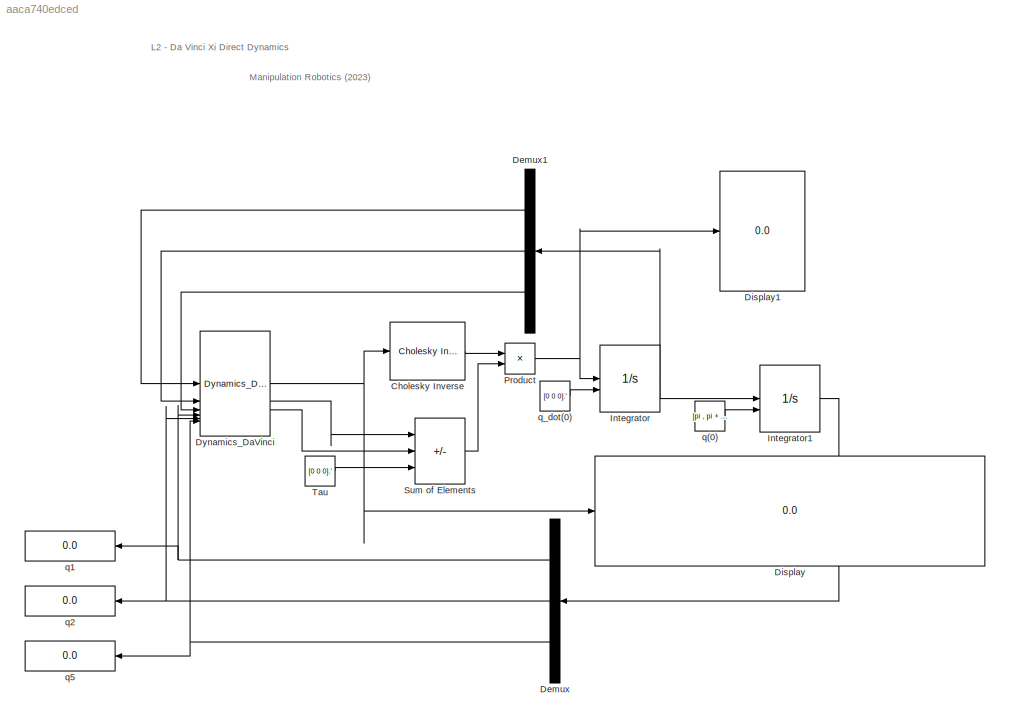
MODEL slx_aaca740edced
KIND model
CONFIG AbsTol = auto
CONFIG EnableMultiTasking = off
CONFIG FixedStep = auto
CONFIG MaxStep = auto
CONFIG MinStep = auto
CONFIG RelTol = 1e-3
CONFIG SampleTimeConstraint = Unconstrained
CONFIG SolverName = VariableStepAuto
CONFIG StartTime = 0.0
CONFIG StopTime = 10.0
BLOCK [Reference] Cholesky Inverse  REF=dspinverses/Cholesky Inverse
  SourceBlock = dspinverses/Cholesky Inverse
  SourceType = Cholesky Inverse
BLOCK [Demux] Demux
  NameLocation = top
  Outputs = 3
BLOCK [Demux] Demux1
  NameLocation = top
  Outputs = 3
BLOCK [Display] Display
  Decimation = 1
BLOCK [Display] Display1
  Decimation = 1
BLOCK [Reference] Dynamics_DaVinci  REF=DaVinci_LibDynamical/Dynamics_DaVinci
  LibrarySourceBlock = simulink/User-Defined\nFunctions/MATLAB Function
  SourceBlock = DaVinci_LibDynamical/Dynamics_DaVinci
  SourceType = SubSystem
BLOCK [Integrator] Integrator
  InitialConditionSource = external
BLOCK [Integrator] Integrator1
  InitialConditionSource = external
BLOCK [Product] Product
  Multiplication = Matrix(*)
BLOCK [Sum] Sum of Elements
  IconShape = rectangular
  Inputs = --+
BLOCK [Constant] Tau
  Value = [0 0 0].'
BLOCK [Constant] q(0)
  Value = [pi , pi + (2*pi / 15) , 0.25 * cos(2*pi/15)].'
BLOCK [Display] q1
  Decimation = 1
  NameLocation = top
BLOCK [Display] q2
  Decimation = 1
  NameLocation = top
BLOCK [Display] q5
  Decimation = 1
  NameLocation = top
BLOCK [Constant] q_dot(0)
  Value = [0 0 0].'
ANNOTATION (root): L2 - Da Vinci Xi Direct Dynamics
ANNOTATION (root): Manipulation Robotics (2023)
LINE Cholesky Inverse:1 -> Product:1
LINE Demux1:1 -> Dynamics_DaVinci:1
LINE Demux1:2 -> Dynamics_DaVinci:2
LINE Demux1:3 -> Dynamics_DaVinci:3
NET Demux:1 -> Dynamics_DaVinci:4, q1:1
NET Demux:2 -> Dynamics_DaVinci:5, q2:1
NET Demux:3 -> Dynamics_DaVinci:6, q5:1
NET Dynamics_DaVinci:1 -> Cholesky Inverse:1, Display:1
LINE Dynamics_DaVinci:2 -> Sum of Elements:1
LINE Dynamics_DaVinci:3 -> Sum of Elements:2
LINE Integrator1:1 -> Demux:1
NET Integrator:1 -> Demux1:1, Integrator1:1
NET Product:1 -> Display1:1, Integrator:1
LINE Sum of Elements:1 -> Product:2
LINE Tau:1 -> Sum of Elements:3
LINE q(0):1 -> Integrator1:2
LINE q_dot(0):1 -> Integrator:2
note: NET lines group one-source signal fan-out (src -> all destinations, sorted); 1:1 wires keep LINE
